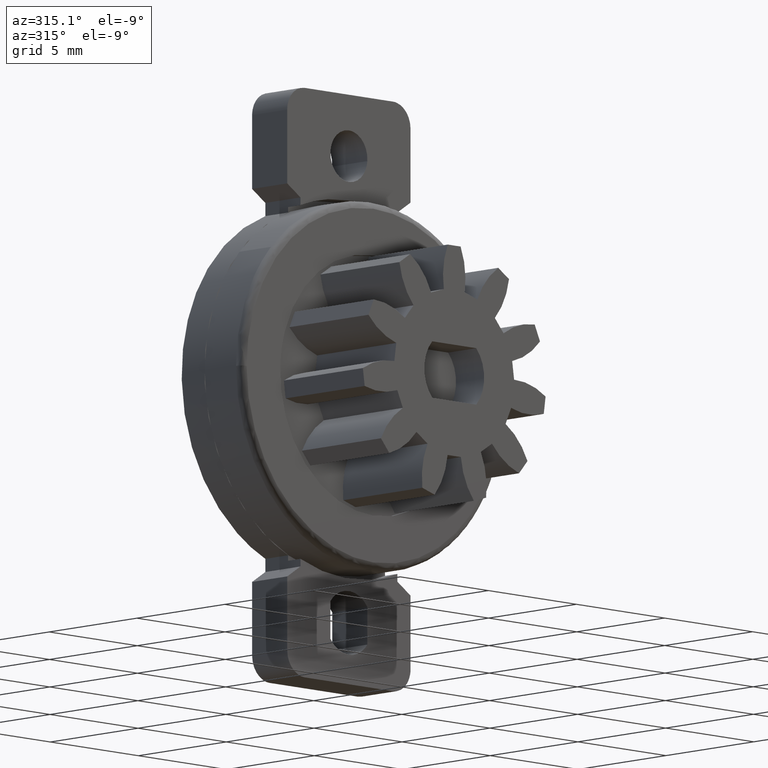
[diagram: clean part render]
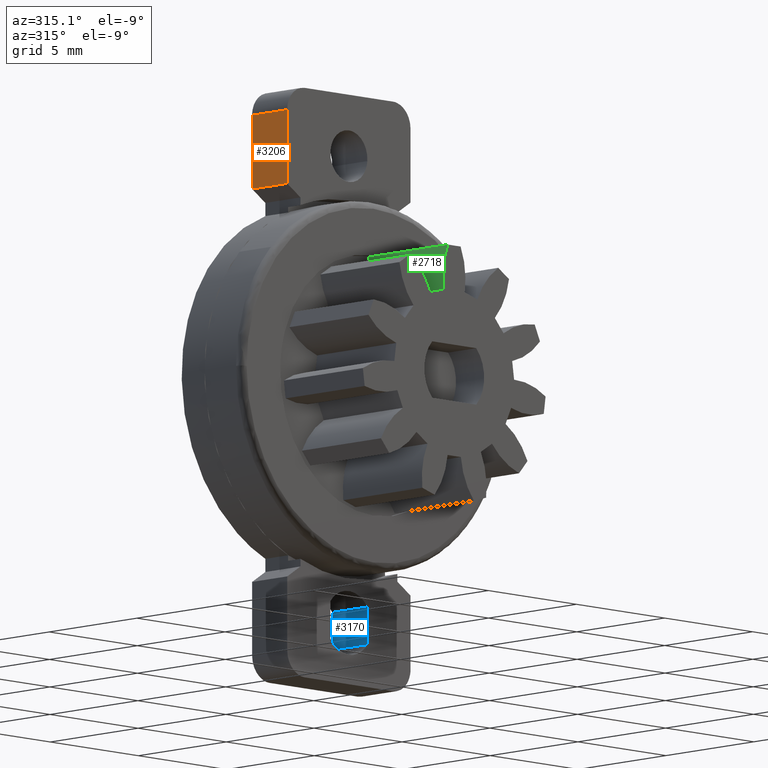
[diagram: same view with three faces highlighted in distinct colors, each labeled with its STEP entity id]
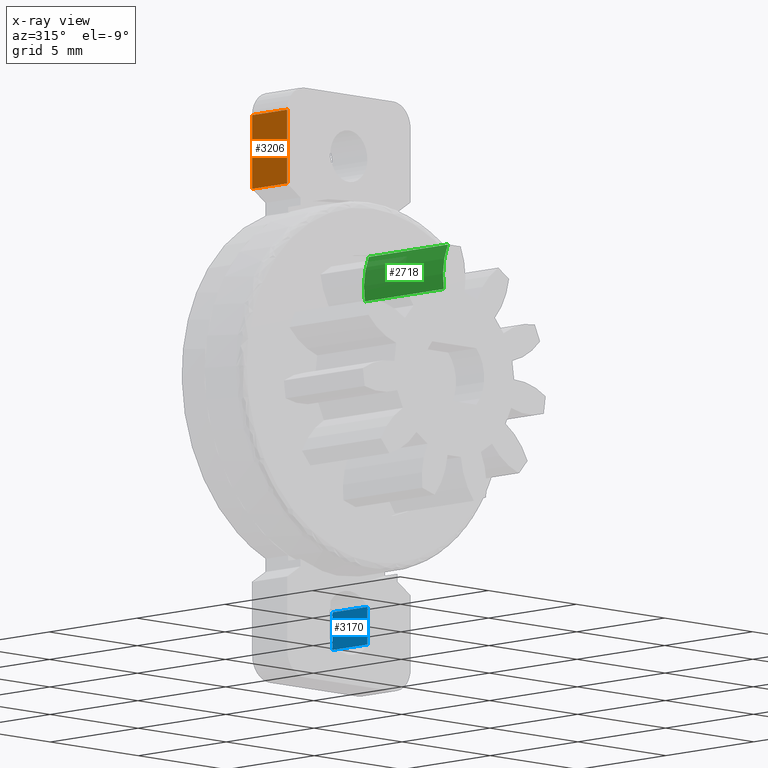
[diagram: x-ray of the same camera — body ghosted, the three highlighted faces saturated]
A machine part, auxiliary view with three faces highlighted in distinct colors.
The next image is the same camera in x-ray (body ghosted, the three faces saturated) — at least one of them is partly hidden behind the body in this view.
Their STEP definitions:

[orange] entity #3206 — the highlighted face is a freeform B-spline surface patch.
#3171=CARTESIAN_POINT('',(-3.500000000000000,-2.099899996123612,7.850150005814582));
#3172=CARTESIAN_POINT('',(-3.500000000000000,-2.099899996123612,11.149850074651690));
#3173=CARTESIAN_POINT('',(-3.500000000000000,0.099900049767792,7.850150005814582));
#3174=CARTESIAN_POINT('',(-3.500000000000000,0.099900049767792,11.149850074651690));
#3175=B_SPLINE_SURFACE_WITH_KNOTS('',1,1,((#3171,#3173),(#3172,#3174)),.UNSPECIFIED.,.F.,.F.,.U.,(2,2),(2,2),(0.0,3.299700068837108),(0.0,2.199800045891404),.UNSPECIFIED.);
#3176=CARTESIAN_POINT('',(-3.500000000000000,0.0,8.0));
#3177=VERTEX_POINT('',#3176);
#3178=CARTESIAN_POINT('',(-3.500000000000000,0.0,11.0));
#3179=VERTEX_POINT('',#3178);
#3180=CARTESIAN_POINT('',(-3.500000000000000,0.0,8.0));
#3181=CARTESIAN_POINT('',(-3.500000000000000,0.0,11.0));
#3182=QUASI_UNIFORM_CURVE('',1,(#3180,#3181),.UNSPECIFIED.,.F.,.U.);
#3183=EDGE_CURVE('',#3177,#3179,#3182,.T.);
#3184=ORIENTED_EDGE('',*,*,#3183,.F.);
#3185=CARTESIAN_POINT('',(-3.500000000000000,-2.0,8.0));
#3186=VERTEX_POINT('',#3185);
#3187=CARTESIAN_POINT('',(-3.500000000000000,-2.0,8.0));
#3188=CARTESIAN_POINT('',(-3.500000000000000,0.0,8.0));
#3189=QUASI_UNIFORM_CURVE('',1,(#3187,#3188),.UNSPECIFIED.,.F.,.U.);
#3190=EDGE_CURVE('',#3186,#3177,#3189,.T.);
#3191=ORIENTED_EDGE('',*,*,#3190,.F.);
#3192=CARTESIAN_POINT('',(-3.500000000000000,-2.0,11.0));
#3193=VERTEX_POINT('',#3192);
#3194=CARTESIAN_POINT('',(-3.500000000000000,-2.0,8.0));
#3195=CARTESIAN_POINT('',(-3.500000000000000,-2.0,11.0));
#3196=QUASI_UNIFORM_CURVE('',1,(#3194,#3195),.UNSPECIFIED.,.F.,.U.);
#3197=EDGE_CURVE('',#3186,#3193,#3196,.T.);
#3198=ORIENTED_EDGE('',*,*,#3197,.T.);
#3199=CARTESIAN_POINT('',(-3.500000000000000,-2.0,11.0));
#3200=CARTESIAN_POINT('',(-3.500000000000000,0.0,11.0));
#3201=QUASI_UNIFORM_CURVE('',1,(#3199,#3200),.UNSPECIFIED.,.F.,.U.);
#3202=EDGE_CURVE('',#3193,#3179,#3201,.T.);
#3203=ORIENTED_EDGE('',*,*,#3202,.T.);
#3204=EDGE_LOOP('',(#3184,#3191,#3198,#3203));
#3205=FACE_OUTER_BOUND('',#3204,.T.);
#3206=ADVANCED_FACE('',(#3205),#3175,.T.);

[blue] entity #3170 — the highlighted face is a freeform B-spline surface patch.
#3013=CARTESIAN_POINT('',(1.050000000000000,0.0,-8.733514514162200));
#3014=VERTEX_POINT('',#3013);
#3033=CARTESIAN_POINT('',(1.050000000000000,-2.0,-8.733514514162200));
#3034=VERTEX_POINT('',#3033);
#3035=CARTESIAN_POINT('',(1.050000000000000,-2.0,-8.733514514162200));
#3036=CARTESIAN_POINT('',(1.050000000000000,0.0,-8.733514514162200));
#3037=QUASI_UNIFORM_CURVE('',1,(#3035,#3036),.UNSPECIFIED.,.F.,.U.);
#3038=EDGE_CURVE('',#3034,#3014,#3037,.T.);
#3107=CARTESIAN_POINT('',(1.050000000000000,0.0,-10.266485485837800));
#3108=VERTEX_POINT('',#3107);
#3125=CARTESIAN_POINT('',(1.050000000000000,-2.0,-10.266485485837800));
#3126=VERTEX_POINT('',#3125);
#3143=CARTESIAN_POINT('',(1.050000000000000,-2.0,-10.266485485837800));
#3144=CARTESIAN_POINT('',(1.050000000000000,0.0,-10.266485485837800));
#3145=QUASI_UNIFORM_CURVE('',1,(#3143,#3144),.UNSPECIFIED.,.F.,.U.);
#3146=EDGE_CURVE('',#3126,#3108,#3145,.T.);
#3151=CARTESIAN_POINT('',(1.050000000000000,-2.099899996123612,-10.343057382901801));
#3152=CARTESIAN_POINT('',(1.050000000000000,-2.099899996123612,-8.656942575980715));
#3153=CARTESIAN_POINT('',(1.050000000000000,0.099900049767792,-10.343057382901801));
#3154=CARTESIAN_POINT('',(1.050000000000000,0.099900049767792,-8.656942575980715));
#3155=B_SPLINE_SURFACE_WITH_KNOTS('',1,1,((#3151,#3153),(#3152,#3154)),.UNSPECIFIED.,.F.,.F.,.U.,(2,2),(2,2),(0.041708334948495,0.958291687403247),(0.0,2.199800045891404),.UNSPECIFIED.);
#3156=CARTESIAN_POINT('',(1.050000000000000,0.0,-10.266485485837800));
#3157=CARTESIAN_POINT('',(1.050000000000000,0.0,-8.733514514162200));
#3158=QUASI_UNIFORM_CURVE('',1,(#3156,#3157),.UNSPECIFIED.,.F.,.U.);
#3159=EDGE_CURVE('',#3108,#3014,#3158,.T.);
#3160=ORIENTED_EDGE('',*,*,#3159,.F.);
#3161=ORIENTED_EDGE('',*,*,#3146,.F.);
#3162=CARTESIAN_POINT('',(1.050000000000000,-2.0,-10.266485485837800));
#3163=CARTESIAN_POINT('',(1.050000000000000,-2.0,-8.733514514162200));
#3164=QUASI_UNIFORM_CURVE('',1,(#3162,#3163),.UNSPECIFIED.,.F.,.U.);
#3165=EDGE_CURVE('',#3126,#3034,#3164,.T.);
#3166=ORIENTED_EDGE('',*,*,#3165,.T.);
#3167=ORIENTED_EDGE('',*,*,#3038,.T.);
#3168=EDGE_LOOP('',(#3160,#3161,#3166,#3167));
#3169=FACE_OUTER_BOUND('',#3168,.T.);
#3170=ADVANCED_FACE('',(#3169),#3155,.T.);

[green] entity #2718 — the highlighted face is a freeform B-spline surface patch.
#419=CARTESIAN_POINT('',(-0.362733663469452,-8.0,5.187333061351090));
#420=VERTEX_POINT('',#419);
#434=CARTESIAN_POINT('',(-0.590403804067567,-8.0,3.348346360241505));
#435=VERTEX_POINT('',#434);
#436=CARTESIAN_POINT('',(-0.362733663469451,-8.0,5.187333061351090));
#437=CARTESIAN_POINT('',(-0.758693978404037,-8.000000000000002,4.302767366376239));
#438=CARTESIAN_POINT('',(-0.590403804067565,-8.0,3.348346360241505));
#446=(BOUNDED_CURVE()B_SPLINE_CURVE(2,(#436,#437,#438),.UNSPECIFIED.,.F.,.U.)CURVE()GEOMETRIC_REPRESENTATION_ITEM()QUASI_UNIFORM_CURVE()RATIONAL_B_SPLINE_CURVE((1.0,0.956011273868735,1.0))REPRESENTATION_ITEM(''));
#447=EDGE_CURVE('',#420,#435,#446,.T.);
#1633=CARTESIAN_POINT('',(-0.590403804067567,-3.499999999999950,3.348346360241505));
#1634=VERTEX_POINT('',#1633);
#1648=CARTESIAN_POINT('',(-0.362733663469452,-3.499999999999950,5.187333061351090));
#1649=VERTEX_POINT('',#1648);
#1650=CARTESIAN_POINT('',(-0.362733663469451,-3.499999999999950,5.187333061351090));
#1651=CARTESIAN_POINT('',(-0.758693978404037,-3.499999999999951,4.302767366376239));
#1652=CARTESIAN_POINT('',(-0.590403804067565,-3.499999999999950,3.348346360241505));
#1660=(BOUNDED_CURVE()B_SPLINE_CURVE(2,(#1650,#1651,#1652),.UNSPECIFIED.,.F.,.U.)CURVE()GEOMETRIC_REPRESENTATION_ITEM()QUASI_UNIFORM_CURVE()RATIONAL_B_SPLINE_CURVE((1.0,0.956011273868735,1.0))REPRESENTATION_ITEM(''));
#1661=EDGE_CURVE('',#1649,#1634,#1660,.T.);
#2684=CARTESIAN_POINT('',(-0.590403804067567,-3.499999999999950,3.348346360241505));
#2685=CARTESIAN_POINT('',(-0.590403804067567,-8.0,3.348346360241505));
#2686=QUASI_UNIFORM_CURVE('',1,(#2684,#2685),.UNSPECIFIED.,.F.,.U.);
#2687=EDGE_CURVE('',#1634,#435,#2686,.T.);
#2694=CARTESIAN_POINT('',(-0.573094497184762,-3.387499999999950,3.257909372727112));
#2695=CARTESIAN_POINT('',(-0.573094497184762,-8.115312500000002,3.257909372727112));
#2696=CARTESIAN_POINT('',(-0.789763233288823,-3.387499999999949,4.306898708040468));
#2697=CARTESIAN_POINT('',(-0.789763233288823,-8.115312500000002,4.306898708040468));
#2698=CARTESIAN_POINT('',(-0.323659420381540,-3.387499999999949,5.271300700157541));
#2699=CARTESIAN_POINT('',(-0.323659420381540,-8.115312500000002,5.271300700157541));
#2707=(BOUNDED_SURFACE()B_SPLINE_SURFACE(1,2,((#2694,#2696,#2698),(#2695,#2697,#2699)),.UNSPECIFIED.,.F.,.F.,.U.)B_SPLINE_SURFACE_WITH_KNOTS((2,2),(3,3),(0.0,4.727812500000052),(0.0,2.083975211491683),.UNSPECIFIED.)GEOMETRIC_REPRESENTATION_ITEM()RATIONAL_B_SPLINE_SURFACE(((0.997786540914082,0.942072450817485,0.991757776564649),(0.997786540914082,0.942072450817485,0.991757776564649)))REPRESENTATION_ITEM('')SURFACE());
#2708=ORIENTED_EDGE('',*,*,#447,.F.);
#2709=CARTESIAN_POINT('',(-0.362733663469452,-3.499999999999950,5.187333061351090));
#2710=CARTESIAN_POINT('',(-0.362733663469452,-8.0,5.187333061351090));
#2711=QUASI_UNIFORM_CURVE('',1,(#2709,#2710),.UNSPECIFIED.,.F.,.U.);
#2712=EDGE_CURVE('',#1649,#420,#2711,.T.);
#2713=ORIENTED_EDGE('',*,*,#2712,.F.);
#2714=ORIENTED_EDGE('',*,*,#1661,.T.);
#2715=ORIENTED_EDGE('',*,*,#2687,.T.);
#2716=EDGE_LOOP('',(#2708,#2713,#2714,#2715));
#2717=FACE_OUTER_BOUND('',#2716,.T.);
#2718=ADVANCED_FACE('',(#2717),#2707,.T.);